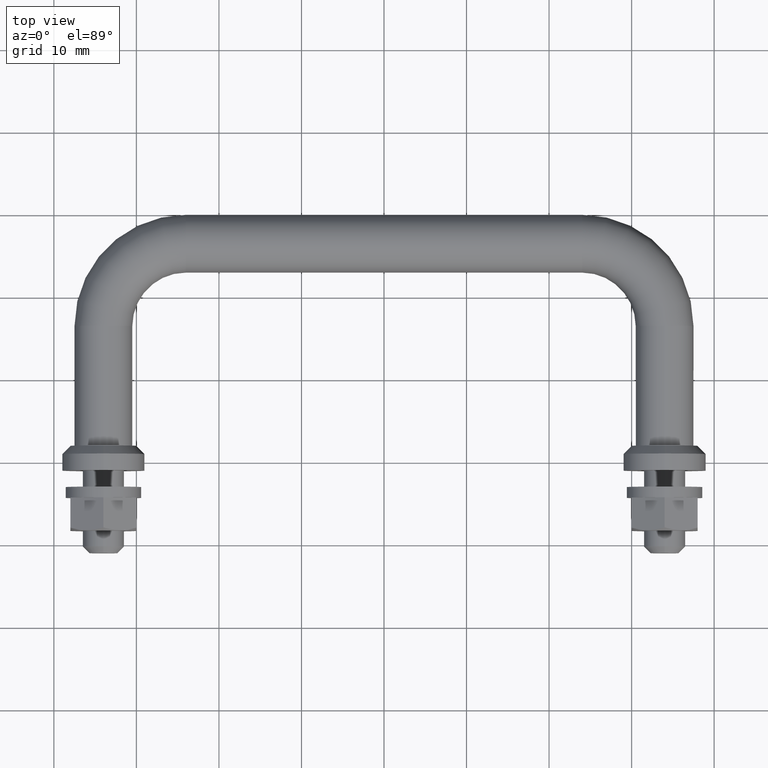
[diagram: clean part render]
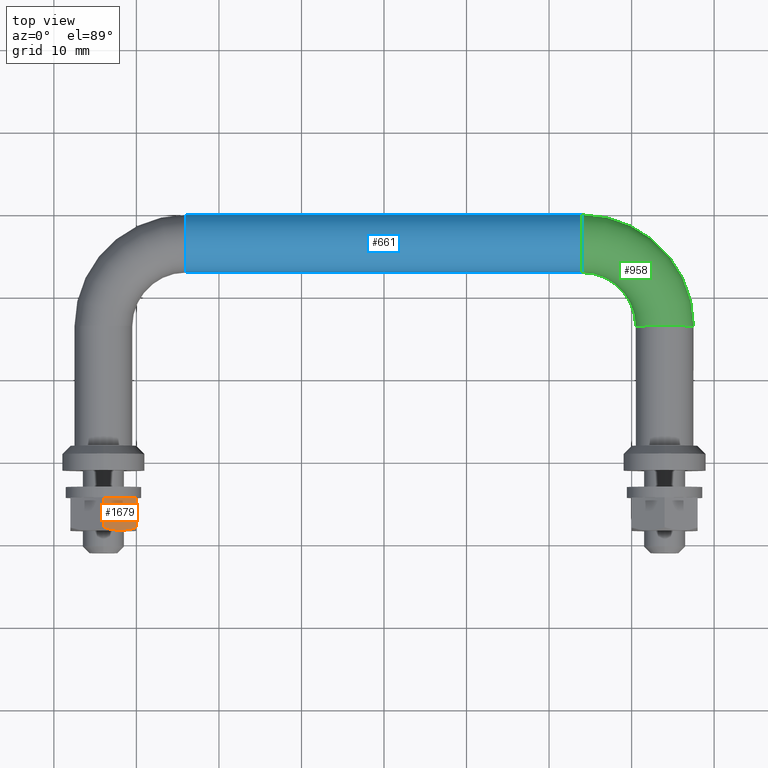
[diagram: same view with three faces highlighted in distinct colors, each labeled with its STEP entity id]
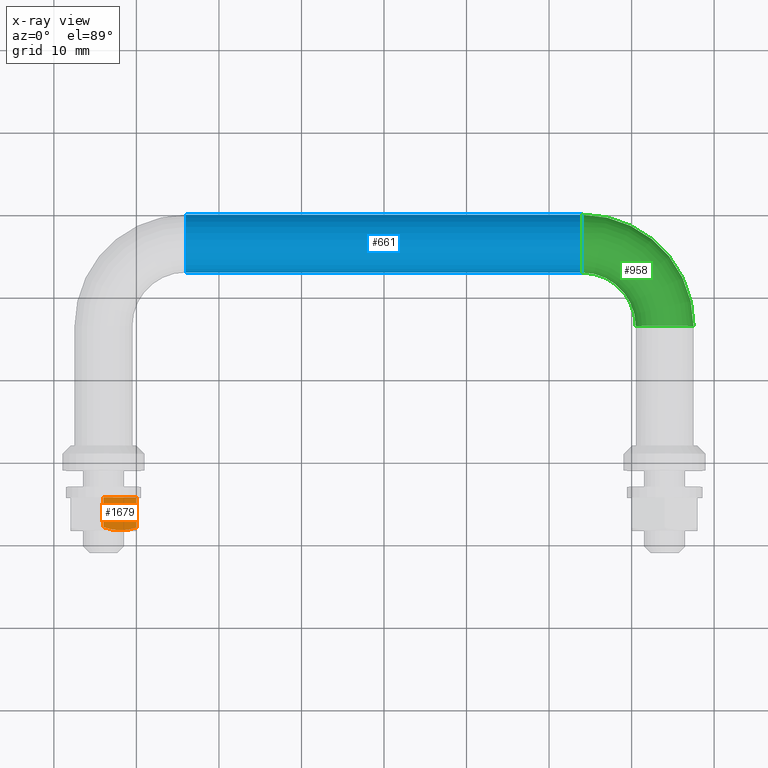
[diagram: x-ray of the same camera — body ghosted, the three highlighted faces saturated]
A machine part, top view with three faces highlighted in distinct colors.
The next image is the same camera in x-ray (body ghosted, the three faces saturated) — at least one of them is partly hidden behind the body in this view.
Their STEP definitions:

[orange] entity #1679 — the highlighted planar face has unit normal (-0.5, 0, -0.866).
#1 = CARTESIAN_POINT ( 'NONE',  ( 3.344563523170211500, 8.141325098309339500, -2.687816249897680100 ) ) ;
#10 = EDGE_CURVE ( 'NONE', #1154, #818, #800, .T. ) ;
#73 = CARTESIAN_POINT ( 'NONE',  ( 4.000000000000000000, 4.299999999999999800, -2.309400000000000100 ) ) ;
#102 = FACE_OUTER_BOUND ( 'NONE', #305, .T. ) ;
#111 = VERTEX_POINT ( 'NONE', #1683 ) ;
#142 = CARTESIAN_POINT ( 'NONE',  ( -3.279943084799095000E-016, 7.942735653425469200, -4.618800000000000200 ) ) ;
#200 = VECTOR ( 'NONE', #1327, 1000.000000000000000 ) ;
#248 = LINE ( 'NONE', #1562, #1215 ) ;
#286 = CARTESIAN_POINT ( 'NONE',  ( 4.000000000000000000, 1004.300000000000000, -2.309400000000000100 ) ) ;
#305 = EDGE_LOOP ( 'NONE', ( #1641, #426, #967, #1054, #502 ) ) ;
#357 = VECTOR ( 'NONE', #471, 1000.000000000000000 ) ;
#426 = ORIENTED_EDGE ( 'NONE', *, *, #10, .T. ) ;
#440 = CARTESIAN_POINT ( 'NONE',  ( 0.0000000000000000000, 1004.300000000000000, -4.618800000000000200 ) ) ;
#471 = DIRECTION ( 'NONE',  ( 0.0000000000000000000, -1.000000000000000000, 0.0000000000000000000 ) ) ;
#482 = B_SPLINE_CURVE_WITH_KNOTS ( 'NONE', 3,
 ( #1404, #956, #974, #1, #828, #1667 ),
 .UNSPECIFIED., .F., .F.,
 ( 4, 2, 4 ),
 ( 0.002336972106660224200, 0.003500974608851519100, 0.004664977111042814500 ),
 .UNSPECIFIED. ) ;
#492 = CARTESIAN_POINT ( 'NONE',  ( 4.000000000000000000, 1004.300000000000000, -2.309400000000000100 ) ) ;
#502 = ORIENTED_EDGE ( 'NONE', *, *, #1101, .T. ) ;
#536 = CARTESIAN_POINT ( 'NONE',  ( 0.6543456345604158300, 8.160850763250261200, -4.241013547886552700 ) ) ;
#575 = VERTEX_POINT ( 'NONE', #771 ) ;
#586 = CARTESIAN_POINT ( 'NONE',  ( 1.999999300624725000, 8.300000000000000700, -3.464102018922179800 ) ) ;
#603 = EDGE_CURVE ( 'NONE', #575, #1336, #814, .T. ) ;
#629 = LINE ( 'NONE', #440, #357 ) ;
#647 = EDGE_CURVE ( 'NONE', #818, #575, #482, .T. ) ;
#723 = DIRECTION ( 'NONE',  ( -0.8660255047305415200, 0.0000000000000000000, -0.4999998251561803000 ) ) ;
#727 = PLANE ( 'NONE',  #1308 ) ;
#771 = CARTESIAN_POINT ( 'NONE',  ( 4.000000000000000000, 7.942734720925199300, -2.309400000000000100 ) ) ;
#800 = B_SPLINE_CURVE_WITH_KNOTS ( 'NONE', 3,
 ( #142, #536, #1430, #586 ),
 .UNSPECIFIED., .F., .F.,
 ( 4, 4 ),
 ( 2.380737231991320900E-007, 0.002336972106660224200 ),
 .UNSPECIFIED. ) ;
#814 = LINE ( 'NONE', #492, #200 ) ;
#818 = VERTEX_POINT ( 'NONE', #1083 ) ;
#828 = CARTESIAN_POINT ( 'NONE',  ( 3.673643186388162900, 8.051520388864540600, -2.497822106338794900 ) ) ;
#956 = CARTESIAN_POINT ( 'NONE',  ( 2.339466985259596800, 8.300000814133108300, -3.268108736060376400 ) ) ;
#967 = ORIENTED_EDGE ( 'NONE', *, *, #647, .T. ) ;
#974 = CARTESIAN_POINT ( 'NONE',  ( 2.678493694350927900, 8.265790480939019200, -3.072371665566495700 ) ) ;
#1054 = ORIENTED_EDGE ( 'NONE', *, *, #603, .T. ) ;
#1083 = CARTESIAN_POINT ( 'NONE',  ( 1.999999300624725000, 8.300000000000000700, -3.464102018922179800 ) ) ;
#1101 = EDGE_CURVE ( 'NONE', #1336, #111, #248, .T. ) ;
#1154 = VERTEX_POINT ( 'NONE', #1598 ) ;
#1215 = VECTOR ( 'NONE', #723, 1000.000000000000100 ) ;
#1267 = EDGE_CURVE ( 'NONE', #1154, #111, #629, .T. ) ;
#1280 = DIRECTION ( 'NONE',  ( -0.4999998251561803000, 0.0000000000000000000, 0.8660255047305415200 ) ) ;
#1308 = AXIS2_PLACEMENT_3D ( 'NONE', #286, #1280, #1710 ) ;
#1327 = DIRECTION ( 'NONE',  ( 0.0000000000000000000, -1.000000000000000000, 0.0000000000000000000 ) ) ;
#1336 = VERTEX_POINT ( 'NONE', #73 ) ;
#1404 = CARTESIAN_POINT ( 'NONE',  ( 1.999999300624725000, 8.300000000000000700, -3.464102018922179800 ) ) ;
#1430 = CARTESIAN_POINT ( 'NONE',  ( 1.318515806956523300, 8.300000794391618100, -3.857554898853658100 ) ) ;
#1562 = CARTESIAN_POINT ( 'NONE',  ( 4.000000000000000000, 4.299999999999999800, -2.309400000000000100 ) ) ;
#1598 = CARTESIAN_POINT ( 'NONE',  ( -3.279943084799095000E-016, 7.942735653425469200, -4.618800000000000200 ) ) ;
#1641 = ORIENTED_EDGE ( 'NONE', *, *, #1267, .F. ) ;
#1667 = CARTESIAN_POINT ( 'NONE',  ( 4.000000000000000000, 7.942734720925199300, -2.309400000000000100 ) ) ;
#1679 = ADVANCED_FACE ( 'NONE', ( #102 ), #727, .F. ) ;
#1683 = CARTESIAN_POINT ( 'NONE',  ( 0.0000000000000000000, 4.299999999999999800, -4.618800000000000200 ) ) ;
#1710 = DIRECTION ( 'NONE',  ( 0.8660255047305415200, 0.0000000000000000000, 0.4999998251561803000 ) ) ;

[blue] entity #661 — the highlighted cylindrical surface (edge-blend (fillet) strip) has radius 3.5 mm, axis along (1, 0, 0).
#35 = CARTESIAN_POINT ( 'NONE',  ( 24.00000000000000700, 26.50000000000001100, 0.0000000000000000000 ) ) ;
#41 = CARTESIAN_POINT ( 'NONE',  ( 24.00000000000000700, 30.00000000000001100, 0.0000000000000000000 ) ) ;
#59 = LINE ( 'NONE', #1444, #1142 ) ;
#141 = DIRECTION ( 'NONE',  ( 0.0000000000000000000, 0.0000000000000000000, 1.000000000000000000 ) ) ;
#157 = ORIENTED_EDGE ( 'NONE', *, *, #1599, .T. ) ;
#258 = CYLINDRICAL_SURFACE ( 'NONE', #310, 3.499999999999999600 ) ;
#298 = DIRECTION ( 'NONE',  ( 1.000000000000000000, 1.445602896647339400E-016, 0.0000000000000000000 ) ) ;
#310 = AXIS2_PLACEMENT_3D ( 'NONE', #666, #968, #1659 ) ;
#329 = CARTESIAN_POINT ( 'NONE',  ( -23.99999999999998600, 23.00000000000000400, 4.286263797015741000E-016 ) ) ;
#452 = CIRCLE ( 'NONE', #523, 3.500000000000000000 ) ;
#461 = EDGE_LOOP ( 'NONE', ( #991, #157, #992, #1151 ) ) ;
#523 = AXIS2_PLACEMENT_3D ( 'NONE', #35, #996, #141 ) ;
#573 = VERTEX_POINT ( 'NONE', #601 ) ;
#601 = CARTESIAN_POINT ( 'NONE',  ( -23.99999999999998600, 30.00000000000000400, 0.0000000000000000000 ) ) ;
#661 = ADVANCED_FACE ( 'NONE', ( #1112 ), #258, .T. ) ;
#666 = CARTESIAN_POINT ( 'NONE',  ( -23.99999999999998600, 26.50000000000000400, 0.0000000000000000000 ) ) ;
#683 = DIRECTION ( 'NONE',  ( 0.0000000000000000000, 0.0000000000000000000, 1.000000000000000000 ) ) ;
#859 = DIRECTION ( 'NONE',  ( 1.000000000000000000, 1.445602896647339400E-016, 0.0000000000000000000 ) ) ;
#955 = VECTOR ( 'NONE', #859, 1000.000000000000000 ) ;
#968 = DIRECTION ( 'NONE',  ( 1.000000000000000000, 1.445602896647339400E-016, 0.0000000000000000000 ) ) ;
#991 = ORIENTED_EDGE ( 'NONE', *, *, #1737, .T. ) ;
#992 = ORIENTED_EDGE ( 'NONE', *, *, #1580, .F. ) ;
#996 = DIRECTION ( 'NONE',  ( 1.000000000000000000, 6.123233995736766000E-017, 0.0000000000000000000 ) ) ;
#1012 = CARTESIAN_POINT ( 'NONE',  ( -23.99999999999998600, 30.00000000000000400, 0.0000000000000000000 ) ) ;
#1112 = FACE_OUTER_BOUND ( 'NONE', #461, .T. ) ;
#1142 = VECTOR ( 'NONE', #298, 1000.000000000000000 ) ;
#1151 = ORIENTED_EDGE ( 'NONE', *, *, #1655, .F. ) ;
#1164 = VERTEX_POINT ( 'NONE', #329 ) ;
#1169 = CIRCLE ( 'NONE', #1410, 3.500000000000000000 ) ;
#1212 = VERTEX_POINT ( 'NONE', #1459 ) ;
#1341 = LINE ( 'NONE', #1012, #955 ) ;
#1410 = AXIS2_PLACEMENT_3D ( 'NONE', #1419, #1701, #683 ) ;
#1419 = CARTESIAN_POINT ( 'NONE',  ( -23.99999999999998600, 26.50000000000000400, 0.0000000000000000000 ) ) ;
#1444 = CARTESIAN_POINT ( 'NONE',  ( -23.99999999999998600, 23.00000000000000400, 4.286263797015736600E-016 ) ) ;
#1459 = CARTESIAN_POINT ( 'NONE',  ( 24.00000000000000700, 23.00000000000001100, 4.286263797015737100E-016 ) ) ;
#1580 = EDGE_CURVE ( 'NONE', #1670, #1212, #452, .T. ) ;
#1599 = EDGE_CURVE ( 'NONE', #1164, #1212, #59, .T. ) ;
#1655 = EDGE_CURVE ( 'NONE', #573, #1670, #1341, .T. ) ;
#1659 = DIRECTION ( 'NONE',  ( 0.0000000000000000000, 1.000000000000000000, 0.0000000000000000000 ) ) ;
#1670 = VERTEX_POINT ( 'NONE', #41 ) ;
#1701 = DIRECTION ( 'NONE',  ( 1.000000000000000000, 6.123233995736766000E-017, 0.0000000000000000000 ) ) ;
#1737 = EDGE_CURVE ( 'NONE', #573, #1164, #1169, .T. ) ;

[green] entity #958 — the highlighted toroidal blend (fillet) surface has major radius 10 mm and minor (blend) radius 3.5 mm.
#11 = DIRECTION ( 'NONE',  ( 0.0000000000000000000, 0.0000000000000000000, 1.000000000000000000 ) ) ;
#32 = CARTESIAN_POINT ( 'NONE',  ( 23.99999999999998900, 16.50000000000001100, 0.0000000000000000000 ) ) ;
#35 = CARTESIAN_POINT ( 'NONE',  ( 24.00000000000000700, 26.50000000000001100, 0.0000000000000000000 ) ) ;
#41 = CARTESIAN_POINT ( 'NONE',  ( 24.00000000000000700, 30.00000000000001100, 0.0000000000000000000 ) ) ;
#44 = EDGE_CURVE ( 'NONE', #1212, #1539, #702, .T. ) ;
#141 = DIRECTION ( 'NONE',  ( 0.0000000000000000000, 0.0000000000000000000, 1.000000000000000000 ) ) ;
#162 = DIRECTION ( 'NONE',  ( -1.000000000000000000, 0.0000000000000000000, 0.0000000000000000000 ) ) ;
#188 = CIRCLE ( 'NONE', #1076, 3.500000000000000000 ) ;
#191 = ORIENTED_EDGE ( 'NONE', *, *, #1799, .F. ) ;
#253 = EDGE_CURVE ( 'NONE', #1670, #668, #1657, .T. ) ;
#295 = FACE_OUTER_BOUND ( 'NONE', #809, .T. ) ;
#317 = ORIENTED_EDGE ( 'NONE', *, *, #44, .T. ) ;
#373 = CARTESIAN_POINT ( 'NONE',  ( 33.99999999999998600, 16.49999999999999300, 3.500000000000000000 ) ) ;
#407 = DIRECTION ( 'NONE',  ( -0.0000000000000000000, -0.0000000000000000000, -1.000000000000000000 ) ) ;
#452 = CIRCLE ( 'NONE', #523, 3.500000000000000000 ) ;
#503 = ORIENTED_EDGE ( 'NONE', *, *, #1580, .T. ) ;
#523 = AXIS2_PLACEMENT_3D ( 'NONE', #35, #996, #141 ) ;
#566 = CARTESIAN_POINT ( 'NONE',  ( 23.99999999999998900, 16.50000000000001100, 4.286263797015736600E-016 ) ) ;
#577 = AXIS2_PLACEMENT_3D ( 'NONE', #566, #407, #1752 ) ;
#604 = CARTESIAN_POINT ( 'NONE',  ( 30.49999999999998900, 16.49999999999999300, 4.286263797015737100E-016 ) ) ;
#653 = TOROIDAL_SURFACE ( 'NONE', #698, 9.999999999999998200, 3.500000000000000000 ) ;
#668 = VERTEX_POINT ( 'NONE', #1113 ) ;
#698 = AXIS2_PLACEMENT_3D ( 'NONE', #1040, #1015, #1300 ) ;
#702 = CIRCLE ( 'NONE', #577, 6.499999999999999100 ) ;
#715 = VERTEX_POINT ( 'NONE', #373 ) ;
#719 = CIRCLE ( 'NONE', #1674, 3.500000000000000000 ) ;
#809 = EDGE_LOOP ( 'NONE', ( #1385, #503, #317, #191, #837 ) ) ;
#837 = ORIENTED_EDGE ( 'NONE', *, *, #1238, .F. ) ;
#895 = DIRECTION ( 'NONE',  ( 3.445092848397666500E-016, -1.000000000000000000, 0.0000000000000000000 ) ) ;
#958 = ADVANCED_FACE ( 'NONE', ( #295 ), #653, .T. ) ;
#996 = DIRECTION ( 'NONE',  ( 1.000000000000000000, 6.123233995736766000E-017, 0.0000000000000000000 ) ) ;
#1002 = DIRECTION ( 'NONE',  ( 3.445092848397666500E-016, -1.000000000000000000, 0.0000000000000000000 ) ) ;
#1015 = DIRECTION ( 'NONE',  ( -0.0000000000000000000, -0.0000000000000000000, -1.000000000000000000 ) ) ;
#1016 = DIRECTION ( 'NONE',  ( -0.0000000000000000000, -0.0000000000000000000, -1.000000000000000000 ) ) ;
#1040 = CARTESIAN_POINT ( 'NONE',  ( 23.99999999999998900, 16.50000000000001100, 0.0000000000000000000 ) ) ;
#1076 = AXIS2_PLACEMENT_3D ( 'NONE', #1589, #895, #1738 ) ;
#1113 = CARTESIAN_POINT ( 'NONE',  ( 37.49999999999999300, 16.49999999999999300, 0.0000000000000000000 ) ) ;
#1212 = VERTEX_POINT ( 'NONE', #1459 ) ;
#1238 = EDGE_CURVE ( 'NONE', #668, #715, #188, .T. ) ;
#1300 = DIRECTION ( 'NONE',  ( -1.000000000000000000, 0.0000000000000000000, 0.0000000000000000000 ) ) ;
#1385 = ORIENTED_EDGE ( 'NONE', *, *, #253, .F. ) ;
#1459 = CARTESIAN_POINT ( 'NONE',  ( 24.00000000000000700, 23.00000000000001100, 4.286263797015737100E-016 ) ) ;
#1539 = VERTEX_POINT ( 'NONE', #604 ) ;
#1540 = CARTESIAN_POINT ( 'NONE',  ( 33.99999999999998600, 16.49999999999999300, 0.0000000000000000000 ) ) ;
#1580 = EDGE_CURVE ( 'NONE', #1670, #1212, #452, .T. ) ;
#1589 = CARTESIAN_POINT ( 'NONE',  ( 33.99999999999998600, 16.49999999999999300, 0.0000000000000000000 ) ) ;
#1657 = CIRCLE ( 'NONE', #1731, 13.49999999999999800 ) ;
#1670 = VERTEX_POINT ( 'NONE', #41 ) ;
#1674 = AXIS2_PLACEMENT_3D ( 'NONE', #1540, #1002, #11 ) ;
#1731 = AXIS2_PLACEMENT_3D ( 'NONE', #32, #1016, #162 ) ;
#1738 = DIRECTION ( 'NONE',  ( 0.0000000000000000000, 0.0000000000000000000, 1.000000000000000000 ) ) ;
#1752 = DIRECTION ( 'NONE',  ( -1.000000000000000000, 0.0000000000000000000, 0.0000000000000000000 ) ) ;
#1799 = EDGE_CURVE ( 'NONE', #715, #1539, #719, .T. ) ;